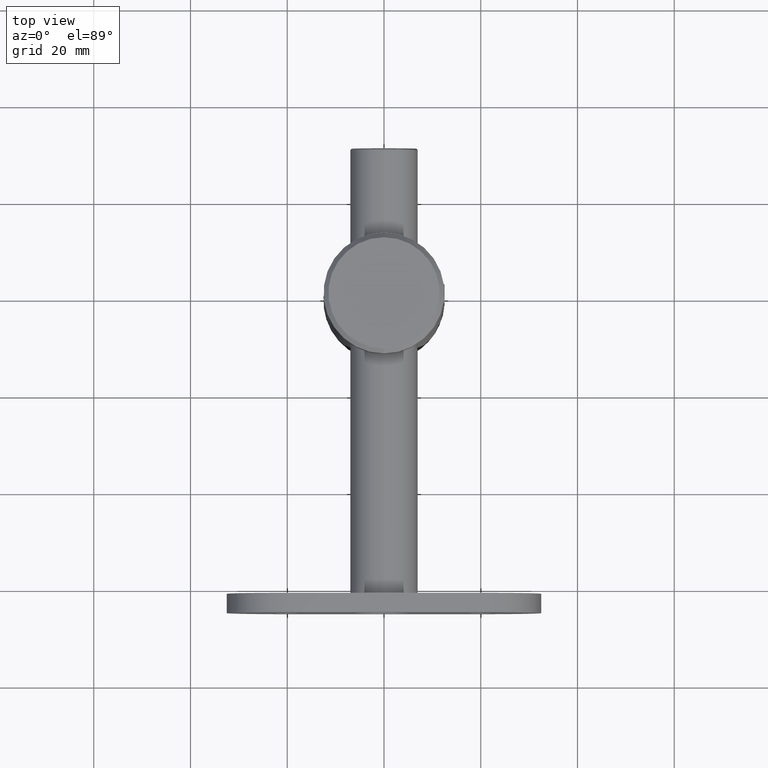
[diagram: clean part render]
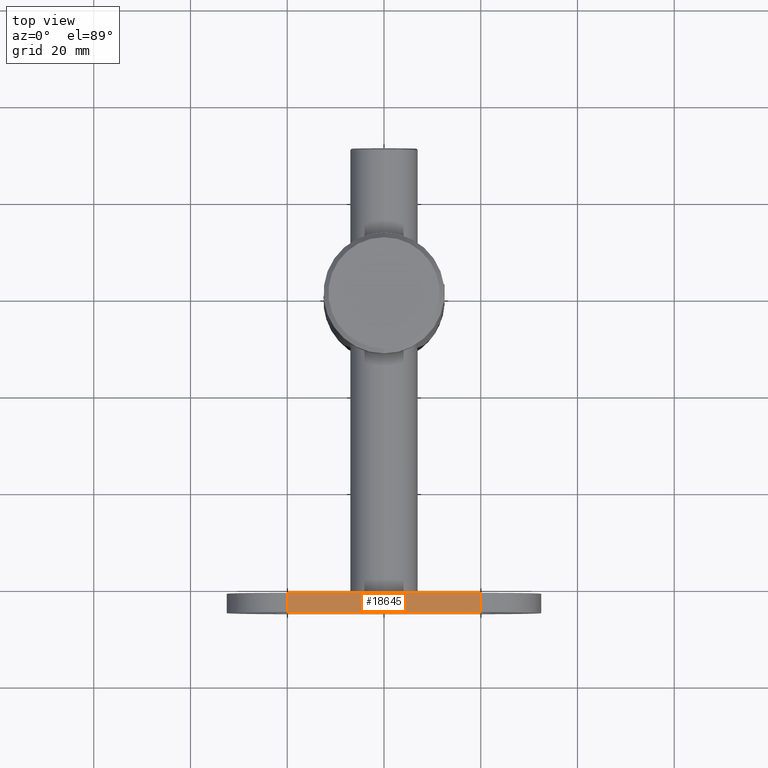
[diagram: same view with one face highlighted and labeled with its STEP entity id]
A machine part, top view. The second image highlights one B-rep face of the part: STEP entity #18645.
In plain terms, the highlighted planar face has unit normal (-0, -0, -1).
Its self-contained STEP definition (entity closure, byte-faithful):
#103 = ORIENTED_EDGE ( 'NONE', *, *, #14111, .T. ) ;
#139 = VERTEX_POINT ( 'NONE', #7342 ) ;
#230 = EDGE_CURVE ( 'NONE', #12388, #745, #8018, .T. ) ;
#317 = DIRECTION ( 'NONE',  ( 0.000000000000000000, 0.000000000000000000, -1.000000000000000000 ) ) ;
#745 = VERTEX_POINT ( 'NONE', #4676 ) ;
#968 = CARTESIAN_POINT ( 'NONE',  ( -12.50000000000001066, 2.000000000000001776, -20.00000000000000355 ) ) ;
#1775 = DIRECTION ( 'NONE',  ( 0.000000000000000000, 0.000000000000000000, -1.000000000000000000 ) ) ;
#2999 = FACE_OUTER_BOUND ( 'NONE', #9317, .T. ) ;
#3073 = PLANE ( 'NONE',  #15231 ) ;
#4094 = DIRECTION ( 'NONE',  ( 0.000000000000000000, -1.000000000000000000, 0.000000000000000000 ) ) ;
#4140 = ORIENTED_EDGE ( 'NONE', *, *, #16649, .T. ) ;
#4476 = VECTOR ( 'NONE', #4094, 1000.000000000000000 ) ;
#4572 = CARTESIAN_POINT ( 'NONE',  ( -12.50000000000001066, 2.000000000000001776, 32.50000000000005684 ) ) ;
#4676 = CARTESIAN_POINT ( 'NONE',  ( -12.50000000000001066, 2.000000000000001776, 20.00000000000000000 ) ) ;
#5513 = DIRECTION ( 'NONE',  ( 0.000000000000000000, 0.000000000000000000, -1.000000000000000000 ) ) ;
#5661 = CARTESIAN_POINT ( 'NONE',  ( -12.50000000000001066, -2.000000000000001776, 20.00000000000000000 ) ) ;
#6024 = CARTESIAN_POINT ( 'NONE',  ( -12.50000000000001066, 2.000000000000001776, 20.00000000000000000 ) ) ;
#6067 = DIRECTION ( 'NONE',  ( 1.000000000000000000, 0.000000000000000000, 0.000000000000000000 ) ) ;
#6278 = LINE ( 'NONE', #10730, #15786 ) ;
#6619 = VECTOR ( 'NONE', #7656, 1000.000000000000000 ) ;
#6963 = LINE ( 'NONE', #12935, #11177 ) ;
#7342 = CARTESIAN_POINT ( 'NONE',  ( -12.50000000000001066, -2.000000000000001776, -20.00000000000000355 ) ) ;
#7656 = DIRECTION ( 'NONE',  ( -0.000000000000000000, 1.000000000000000000, -0.000000000000000000 ) ) ;
#8018 = LINE ( 'NONE', #6024, #6619 ) ;
#9317 = EDGE_LOOP ( 'NONE', ( #4140, #103, #17486, #13413 ) ) ;
#10730 = CARTESIAN_POINT ( 'NONE',  ( -12.50000000000001066, 2.000000000000001776, 32.50000000000005684 ) ) ;
#10738 = VERTEX_POINT ( 'NONE', #14809 ) ;
#10928 = EDGE_CURVE ( 'NONE', #12388, #139, #6963, .T. ) ;
#11177 = VECTOR ( 'NONE', #5513, 1000.000000000000000 ) ;
#12388 = VERTEX_POINT ( 'NONE', #5661 ) ;
#12935 = CARTESIAN_POINT ( 'NONE',  ( -12.50000000000001066, -2.000000000000001776, 32.50000000000005684 ) ) ;
#13322 = LINE ( 'NONE', #968, #4476 ) ;
#13413 = ORIENTED_EDGE ( 'NONE', *, *, #230, .T. ) ;
#14111 = EDGE_CURVE ( 'NONE', #10738, #139, #13322, .T. ) ;
#14809 = CARTESIAN_POINT ( 'NONE',  ( -12.50000000000001066, 2.000000000000001776, -20.00000000000000355 ) ) ;
#15231 = AXIS2_PLACEMENT_3D ( 'NONE', #4572, #6067, #1775 ) ;
#15786 = VECTOR ( 'NONE', #317, 1000.000000000000000 ) ;
#16649 = EDGE_CURVE ( 'NONE', #745, #10738, #6278, .T. ) ;
#17486 = ORIENTED_EDGE ( 'NONE', *, *, #10928, .F. ) ;
#18645 = ADVANCED_FACE ( 'NONE', ( #2999 ), #3073, .F. ) ;